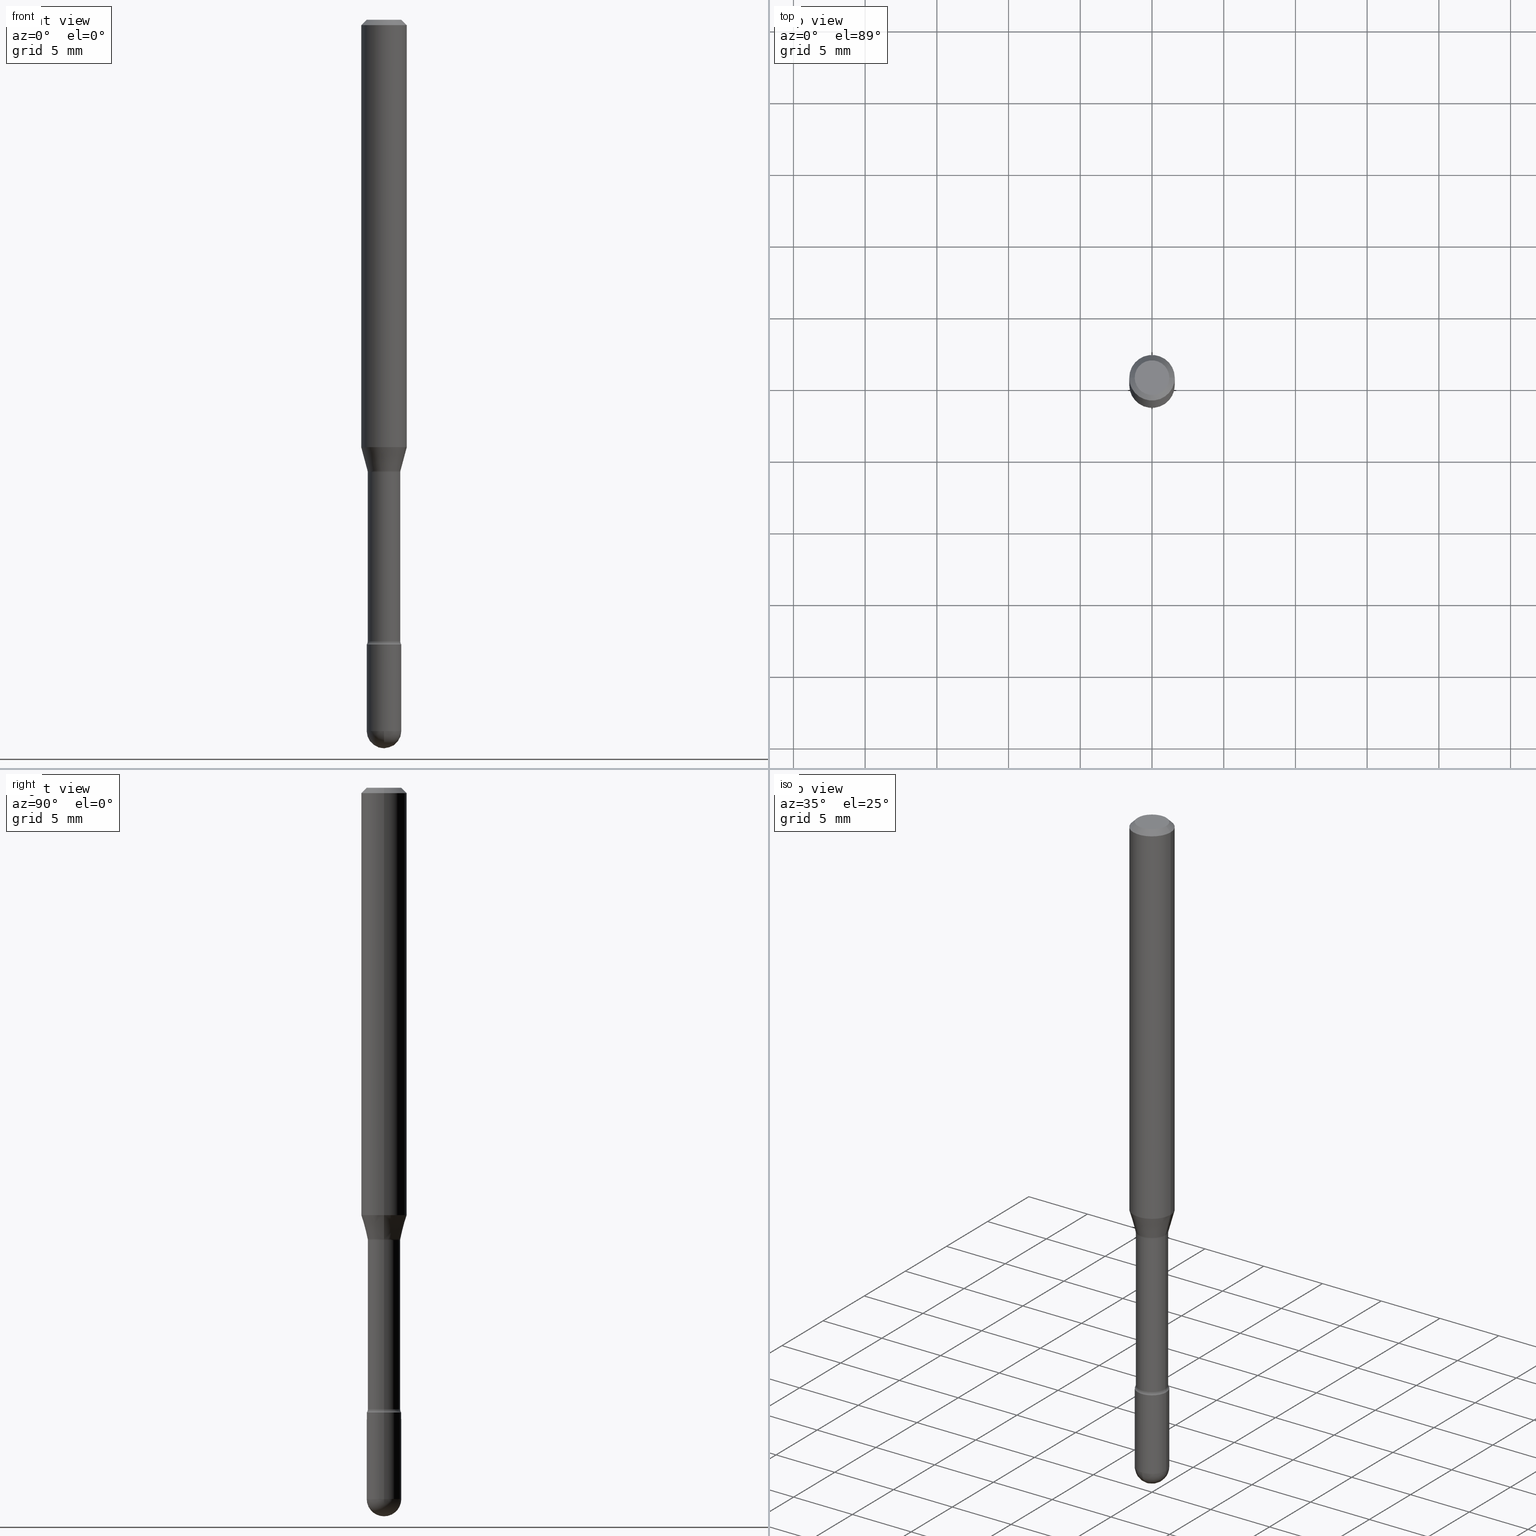
[diagram: canonical four-view strip — front | top / right | iso, engineering-drawing reading convention]
A machine part, canonical four-view strip (front | top / right | iso — engineering-drawing reading convention). The complete STEP part file that produces these views, byte-faithful:
ISO-10303-21;
HEADER;
FILE_DESCRIPTION (( 'STEP AP203' ),
    '1' );
FILE_NAME ('09829.STEP',
    '2024-04-10T01:58:22',
    ( '' ),
    ( '' ),
    'SwSTEP 2.0',
    'SolidWorks 2023',
    '' );
FILE_SCHEMA (( 'CONFIG_CONTROL_DESIGN' ));
ENDSEC;

DATA;
#1 = FACE_OUTER_BOUND ( 'NONE', #123, .T. ) ;
#2 = APPROVAL_PERSON_ORGANIZATION ( #74, #91, #261 ) ;
#3 = ADVANCED_FACE ( 'NONE', ( #472 ), #211, .T. ) ;
#4 = DIRECTION ( 'NONE',  ( 1.000000000000000000, -6.982962677686265133E-15, 4.883557194083112340E-29 ) ) ;
#5 = EDGE_CURVE ( 'NONE', #31, #465, #383, .T. ) ;
#6 = DIRECTION ( 'NONE',  ( -2.445468806185136597E-29, 3.491481338843145583E-15, 1.000000000000000000 ) ) ;
#7 = ORIENTED_EDGE ( 'NONE', *, *, #349, .T. ) ;
#8 = CARTESIAN_POINT ( 'NONE',  ( 4.193979002607509757E-29, -5.987890496115994688E-15, -1.715000000000000080 ) ) ;
#9 = CARTESIAN_POINT ( 'NONE',  ( 0.04516111260566398056, -4.638135229560025588E-15, -1.238092501787273036 ) ) ;
#10 = DIRECTION ( 'NONE',  ( 1.000000000000000000, -6.982962677686271444E-15, 0.000000000000000000 ) ) ;
#11 = ADVANCED_FACE ( 'NONE', ( #563 ), #265, .T. ) ;
#12 = DIRECTION ( 'NONE',  ( -2.445468806185136597E-29, 3.491481338843145583E-15, 1.000000000000000000 ) ) ;
#13 = EDGE_LOOP ( 'NONE', ( #508, #273, #191, #350 ) ) ;
#14 = EDGE_LOOP ( 'NONE', ( #63, #535 ) ) ;
#15 = DIRECTION ( 'NONE',  ( -2.445468806185136877E-29, 3.491481338843145188E-15, 1.000000000000000000 ) ) ;
#16 = CARTESIAN_POINT ( 'NONE',  ( -0.04516111260566398056, -4.001887860743903351E-15, -1.238092501787273036 ) ) ;
#17 = CARTESIAN_POINT ( 'NONE',  ( 4.774777844076478914E-29, -6.817117314091241226E-15, -1.952499999999999902 ) ) ;
#18 = VECTOR ( 'NONE', #86, 39.37007874015748143 ) ;
#19 = AXIS2_PLACEMENT_3D ( 'NONE', #54, #494, #412 ) ;
#20 = CARTESIAN_POINT ( 'NONE',  ( 3.027716592292491270E-29, -4.322776865751887960E-15, -1.238092501787273036 ) ) ;
#21 = VERTEX_POINT ( 'NONE', #165 ) ;
#22 = DIRECTION ( 'NONE',  ( 7.105427357601001859E-15, 1.000000000000000000, -3.491481338843145583E-15 ) ) ;
#23 = EDGE_LOOP ( 'NONE', ( #205, #163, #338, #497 ) ) ;
#24 = EDGE_LOOP ( 'NONE', ( #110, #119, #198, #459 ) ) ;
#25 = VERTEX_POINT ( 'NONE', #342 ) ;
#26 = ADVANCED_FACE ( 'NONE', ( #419 ), #72, .F. ) ;
#27 = DIRECTION ( 'NONE',  ( 1.000000000000000000, -6.982962677686260400E-15, 0.000000000000000000 ) ) ;
#28 = EDGE_CURVE ( 'NONE', #348, #411, #154, .T. ) ;
#29 = CALENDAR_DATE ( 2024, 9, 4 ) ;
#30 = DIRECTION ( 'NONE',  ( -2.445468806185136597E-29, 3.491481338843145583E-15, 1.000000000000000000 ) ) ;
#31 = VERTEX_POINT ( 'NONE', #128 ) ;
#32 = DATE_TIME_ROLE ( 'creation_date' ) ;
#33 = ORIENTED_EDGE ( 'NONE', *, *, #481, .F. ) ;
#34 = DATE_AND_TIME ( #382, #426 ) ;
#35 = FACE_OUTER_BOUND ( 'NONE', #192, .T. ) ;
#36 = VECTOR ( 'NONE', #460, 39.37007874015748143 ) ;
#37 = CARTESIAN_POINT ( 'NONE',  ( 3.037210600811164574E-29, -4.336331793743577757E-15, -1.241974787463810959 ) ) ;
#38 = DIRECTION ( 'NONE',  ( 2.445468806185136597E-29, -3.491481338843145583E-15, -1.000000000000000000 ) ) ;
#39 = CARTESIAN_POINT ( 'NONE',  ( 2.869471262750380968E-29, -4.096844474523694177E-15, -1.173382893084895295 ) ) ;
#40 = DIRECTION ( 'NONE',  ( -2.445468806185136597E-29, 3.491481338843145583E-15, 1.000000000000000000 ) ) ;
#41 = ADVANCED_FACE ( 'NONE', ( #352 ), #257, .T. ) ;
#42 = VECTOR ( 'NONE', #446, 39.37007874015748143 ) ;
#43 = CIRCLE ( 'NONE', #354, 0.04749999999999999362 ) ;
#44 = LINE ( 'NONE', #200, #79 ) ;
#45 = DIRECTION ( 'NONE',  ( -2.445468806185136597E-29, 3.491481338843145583E-15, 1.000000000000000000 ) ) ;
#46 = FACE_OUTER_BOUND ( 'NONE', #334, .T. ) ;
#47 = CARTESIAN_POINT ( 'NONE',  ( -1.169113584055446105E-44, 1.669184350826100908E-30, 4.780733988912460139E-16 ) ) ;
#48 = CARTESIAN_POINT ( 'NONE',  ( 4.774777844076478914E-29, -6.817117314091241226E-15, -1.952499999999999902 ) ) ;
#49 = VERTEX_POINT ( 'NONE', #75 ) ;
#50 = LOCAL_TIME ( 21, 58, 22.00000000000000000, #70 ) ;
#51 = VECTOR ( 'NONE', #315, 39.37007874015748143 ) ;
#52 = FACE_OUTER_BOUND ( 'NONE', #408, .T. ) ;
#53 = DIRECTION ( 'NONE',  ( 1.000000000000000000, -6.982962677686266711E-15, 4.852736867747366207E-29 ) ) ;
#54 = CARTESIAN_POINT ( 'NONE',  ( 0.05965000000000000163, -4.752865517467563497E-15, -1.241974787463810959 ) ) ;
#55 = CARTESIAN_POINT ( 'NONE',  ( 4.193979002607509757E-29, -5.987890496115994688E-15, -1.715000000000000080 ) ) ;
#56 = DIRECTION ( 'NONE',  ( 1.000000000000000000, -6.982962677686258033E-15, 0.000000000000000000 ) ) ;
#57 = ORIENTED_EDGE ( 'NONE', *, *, #474, .F. ) ;
#58 = CIRCLE ( 'NONE', #528, 0.04750000000000000749 ) ;
#59 = ADVANCED_FACE ( 'NONE', ( #35 ), #544, .T. ) ;
#60 = EDGE_LOOP ( 'NONE', ( #423, #531, #402, #346, #239 ) ) ;
#61 = CIRCLE ( 'NONE', #434, 0.04749999999999998668 ) ;
#62 = CIRCLE ( 'NONE', #457, 0.04750000000000000749 ) ;
#63 = ORIENTED_EDGE ( 'NONE', *, *, #146, .T. ) ;
#64 = DIRECTION ( 'NONE',  ( 1.000000000000000000, -6.982962677686266711E-15, 0.000000000000000000 ) ) ;
#65 = CARTESIAN_POINT ( 'NONE',  ( -0.06250000000000000000, 4.440892098500642925E-16, 4.780733988912429571E-16 ) ) ;
#66 = ORIENTED_EDGE ( 'NONE', *, *, #250, .T. ) ;
#67 = COORDINATED_UNIVERSAL_TIME_OFFSET ( 5, 0, .BEHIND. ) ;
#68 = VERTEX_POINT ( 'NONE', #230 ) ;
#69 = ADVANCED_FACE ( 'NONE', ( #1 ), #375, .F. ) ;
#70 = COORDINATED_UNIVERSAL_TIME_OFFSET ( 5, 0, .BEHIND. ) ;
#71 = ORIENTED_EDGE ( 'NONE', *, *, #259, .F. ) ;
#72 = TOROIDAL_SURFACE ( 'NONE', #124, 0.05965000000000000163, 0.01500000000000003240 ) ;
#73 = APPROVAL_STATUS ( 'not_yet_approved' ) ;
#74 = PERSON_AND_ORGANIZATION ( #473, #129 ) ;
#75 = CARTESIAN_POINT ( 'NONE',  ( 3.316907271901453357E-16, 0.04749999999999317268, -1.952500000000000346 ) ) ;
#76 = EDGE_CURVE ( 'NONE', #68, #366, #480, .T. ) ;
#77 = PRODUCT ( '09829', '09829', '', ( #167 ) ) ;
#78 = AXIS2_PLACEMENT_3D ( 'NONE', #20, #288, #56 ) ;
#79 = VECTOR ( 'NONE', #15, 39.37007874015748143 ) ;
#80 = CARTESIAN_POINT ( 'NONE',  ( 3.037210600811164574E-29, -4.336331793743577757E-15, -1.241974787463810959 ) ) ;
#81 = EDGE_CURVE ( 'NONE', #101, #455, #112, .T. ) ;
#82 = CIRCLE ( 'NONE', #565, 0.04465000000000005076 ) ;
#83 = EDGE_LOOP ( 'NONE', ( #213, #221, #529, #538 ) ) ;
#84 = AXIS2_PLACEMENT_3D ( 'NONE', #184, #6, #95 ) ;
#85 = CARTESIAN_POINT ( 'NONE',  ( -0.04464999999999999525, -4.829497496136509285E-15, -1.241974787463810959 ) ) ;
#86 = DIRECTION ( 'NONE',  ( 0.2588190451025205729, 1.565188264969628081E-15, 0.9659258262890684232 ) ) ;
#87 = DIRECTION ( 'NONE',  ( 1.000000000000000000, -6.982962677686262766E-15, 0.000000000000000000 ) ) ;
#88 = EDGE_CURVE ( 'NONE', #245, #554, #357, .T. ) ;
#89 = DIRECTION ( 'NONE',  ( 1.000000000000000000, -6.982962677686265922E-15, 4.876176775795935793E-29 ) ) ;
#90 = ORIENTED_EDGE ( 'NONE', *, *, #349, .F. ) ;
#91 = APPROVAL ( #73, 'UNSPECIFIED' ) ;
#92 = EDGE_LOOP ( 'NONE', ( #483, #547, #197, #249, #289 ) ) ;
#93 = LINE ( 'NONE', #453, #42 ) ;
#94 = MANIFOLD_SOLID_BREP ( 'Body-Move/Copy2[2]', #102 ) ;
#95 = DIRECTION ( 'NONE',  ( 1.000000000000000000, -6.982962677686258033E-15, 0.000000000000000000 ) ) ;
#96 = ORIENTED_EDGE ( 'NONE', *, *, #76, .T. ) ;
#97 = DIRECTION ( 'NONE',  ( -2.445468806185136597E-29, 3.491481338843145583E-15, 1.000000000000000000 ) ) ;
#98 = CARTESIAN_POINT ( 'NONE',  ( -0.04516111260566398056, -3.827321562708767456E-15, -1.238092501787273036 ) ) ;
#99 = DIRECTION ( 'NONE',  ( -2.445468806185136597E-29, 3.491481338843145583E-15, 1.000000000000000000 ) ) ;
#100 = LOCAL_TIME ( 21, 58, 22.00000000000000000, #67 ) ;
#101 = VERTEX_POINT ( 'NONE', #326 ) ;
#102 = CLOSED_SHELL ( 'NONE', ( #26, #281, #398, #11, #139, #59, #314, #157, #41, #523, #451, #208, #3, #69 ) ) ;
#103 = CARTESIAN_POINT ( 'NONE',  ( 2.023552857353652888E-45, -2.889097183224559242E-31, -8.274703207154537794E-17 ) ) ;
#104 = CARTESIAN_POINT ( 'NONE',  ( 3.037210600811164574E-29, -4.336331793743577757E-15, -1.241974787463810959 ) ) ;
#105 = DIRECTION ( 'NONE',  ( 1.000000000000000000, -6.982962677686260400E-15, 0.000000000000000000 ) ) ;
#106 = DIRECTION ( 'NONE',  ( 1.000000000000000000, -6.982962677686261977E-15, 0.000000000000000000 ) ) ;
#107 = EDGE_CURVE ( 'NONE', #542, #385, #437, .T. ) ;
#108 = EDGE_CURVE ( 'NONE', #204, #313, #469, .T. ) ;
#109 = CARTESIAN_POINT ( 'NONE',  ( 4.774777844076478914E-29, -6.817117314091241226E-15, -1.952499999999999902 ) ) ;
#110 = ORIENTED_EDGE ( 'NONE', *, *, #231, .F. ) ;
#111 = AXIS2_PLACEMENT_3D ( 'NONE', #55, #492, #365 ) ;
#112 = CIRCLE ( 'NONE', #393, 0.04749999999999999362 ) ;
#113 = AXIS2_PLACEMENT_3D ( 'NONE', #545, #489, #135 ) ;
#114 = ORIENTED_EDGE ( 'NONE', *, *, #526, .T. ) ;
#115 = CARTESIAN_POINT ( 'NONE',  ( 3.316907271900976096E-16, 0.04749999999999999362, 3.181781981480094004E-17 ) ) ;
#116 = APPROVAL ( #470, 'UNSPECIFIED' ) ;
#117 = PERSON_AND_ORGANIZATION ( #473, #129 ) ;
#118 = DIRECTION ( 'NONE',  ( -1.000000000000000000, 6.982962677686265922E-15, -4.876176775795935793E-29 ) ) ;
#119 = ORIENTED_EDGE ( 'NONE', *, *, #108, .T. ) ;
#120 = CARTESIAN_POINT ( 'NONE',  ( 3.668203209277725232E-31, -5.237222008264747365E-17, -0.01500000000000008271 ) ) ;
#121 = DATE_AND_TIME ( #515, #100 ) ;
#122 = FACE_OUTER_BOUND ( 'NONE', #92, .T. ) ;
#123 = EDGE_LOOP ( 'NONE', ( #425, #57, #445, #397 ) ) ;
#124 = AXIS2_PLACEMENT_3D ( 'NONE', #268, #40, #4 ) ;
#125 = DIRECTION ( 'NONE',  ( -2.445468806185136597E-29, 3.491481338843145583E-15, 1.000000000000000000 ) ) ;
#126 = LINE ( 'NONE', #65, #262 ) ;
#127 = ORIENTED_EDGE ( 'NONE', *, *, #250, .F. ) ;
#128 = CARTESIAN_POINT ( 'NONE',  ( -0.04750000000000000749, -6.064996105617570464E-15, -1.952499999999999902 ) ) ;
#129 = ORGANIZATION ( 'UNSPECIFIED', 'UNSPECIFIED', '' ) ;
#130 = DIRECTION ( 'NONE',  ( -1.000000000000000000, 6.982962677686266711E-15, 0.000000000000000000 ) ) ;
#131 = EDGE_CURVE ( 'NONE', #385, #550, #93, .T. ) ;
#132 = APPLICATION_PROTOCOL_DEFINITION ( 'international standard', 'config_control_design', 1994, #269 ) ;
#133 = CARTESIAN_POINT ( 'NONE',  ( 0.04750000000000000749, -3.316907271900977082E-16, 2.316183968503069432E-30 ) ) ;
#134 = DIRECTION ( 'NONE',  ( -2.445468806185136597E-29, 3.491481338843145583E-15, 1.000000000000000000 ) ) ;
#135 = DIRECTION ( 'NONE',  ( 6.982962677686265922E-15, 1.000000000000000000, -5.751258934030028949E-15 ) ) ;
#136 = TOROIDAL_SURFACE ( 'NONE', #227, 0.05965000000000005714, 0.01500000000000000291 ) ;
#137 = DIRECTION ( 'NONE',  ( -6.982962677686266711E-15, -1.000000000000000000, 3.491481338843145583E-15 ) ) ;
#138 = CARTESIAN_POINT ( 'NONE',  ( 0.06250000000000000000, -4.888073874380391431E-16, -0.01500000000000008271 ) ) ;
#139 = ADVANCED_FACE ( 'NONE', ( #487 ), #241, .T. ) ;
#140 = VERTEX_POINT ( 'NONE', #85 ) ;
#141 = DIRECTION ( 'NONE',  ( -2.445468806185136597E-29, 3.491481338843145583E-15, 1.000000000000000000 ) ) ;
#142 = CARTESIAN_POINT ( 'NONE',  ( 0.000000000000000000, 0.000000000000000000, 0.000000000000000000 ) ) ;
#143 = EDGE_LOOP ( 'NONE', ( #428, #421, #325, #496 ) ) ;
#144 = DIRECTION ( 'NONE',  ( 1.000000000000000000, -6.982962677686265922E-15, 4.883557194083112340E-29 ) ) ;
#145 = CARTESIAN_POINT ( 'NONE',  ( 0.04464999999999999525, -4.648121077302269339E-15, -1.241974787463810959 ) ) ;
#146 = EDGE_CURVE ( 'NONE', #411, #465, #368, .T. ) ;
#147 = AXIS2_PLACEMENT_3D ( 'NONE', #151, #543, #499 ) ;
#148 = AXIS2_PLACEMENT_3D ( 'NONE', #103, #399, #274 ) ;
#149 = EDGE_CURVE ( 'NONE', #313, #68, #524, .T. ) ;
#150 = CARTESIAN_POINT ( 'NONE',  ( 4.774777844076478914E-29, -6.817117314091241226E-15, -1.952499999999999902 ) ) ;
#151 = CARTESIAN_POINT ( 'NONE',  ( 3.027716592292491270E-29, -4.322776865751887960E-15, -1.238092501787273036 ) ) ;
#152 = DIRECTION ( 'NONE',  ( -2.445468806185136597E-29, 3.491481338843145583E-15, 1.000000000000000000 ) ) ;
#153 = ORIENTED_EDGE ( 'NONE', *, *, #243, .F. ) ;
#154 = LINE ( 'NONE', #133, #51 ) ;
#155 = DIRECTION ( 'NONE',  ( 1.000000000000000000, -6.982962677686261977E-15, 0.000000000000000000 ) ) ;
#156 = FACE_OUTER_BOUND ( 'NONE', #407, .T. ) ;
#157 = ADVANCED_FACE ( 'NONE', ( #46 ), #327, .T. ) ;
#158 = AXIS2_PLACEMENT_3D ( 'NONE', #115, #509, #118 ) ;
#159 = DATE_AND_TIME ( #301, #170 ) ;
#160 = CIRCLE ( 'NONE', #435, 0.04750000000000000749 ) ;
#161 = ORIENTED_EDGE ( 'NONE', *, *, #229, .T. ) ;
#162 = DIRECTION ( 'NONE',  ( -1.000000000000000000, 7.105427357600989237E-15, 0.000000000000000000 ) ) ;
#163 = ORIENTED_EDGE ( 'NONE', *, *, #413, .T. ) ;
#164 = APPROVAL_DATE_TIME ( #341, #116 ) ;
#165 = CARTESIAN_POINT ( 'NONE',  ( -0.06250000000000000000, -3.652755264673631561E-15, -1.173382893084895295 ) ) ;
#166 = ORIENTED_EDGE ( 'NONE', *, *, #229, .F. ) ;
#167 = MECHANICAL_CONTEXT ( 'NONE', #471, 'mechanical' ) ;
#168 = EDGE_CURVE ( 'NONE', #466, #25, #82, .T. ) ;
#169 = PERSON_AND_ORGANIZATION_ROLE ( 'creator' ) ;
#170 = LOCAL_TIME ( 21, 58, 22.00000000000000000, #228 ) ;
#171 = DESIGN_CONTEXT ( 'detailed design', #269, 'design' ) ;
#172 = CLOSED_SHELL ( 'NONE', ( #295, #316, #371, #351, #430 ) ) ;
#173 = CIRCLE ( 'NONE', #405, 0.06250000000000000000 ) ;
#174 = APPROVAL_ROLE ( '' ) ;
#175 = CC_DESIGN_PERSON_AND_ORGANIZATION_ASSIGNMENT ( #376, #169, ( #391 ) ) ;
#176 = DIRECTION ( 'NONE',  ( 1.000000000000000000, -6.982962677686265133E-15, 4.883557194083112340E-29 ) ) ;
#177 = PERSON_AND_ORGANIZATION_ROLE ( 'design_owner' ) ;
#178 = VECTOR ( 'NONE', #251, 39.37007874015748143 ) ;
#179 = FACE_OUTER_BOUND ( 'NONE', #83, .T. ) ;
#180 = DIRECTION ( 'NONE',  ( -1.000000000000000000, 7.105427357601001070E-15, -4.926315508542082329E-29 ) ) ;
#181 = FACE_OUTER_BOUND ( 'NONE', #561, .T. ) ;
#182 = CIRCLE ( 'NONE', #504, 0.01500000000000002720 ) ;
#183 = CIRCLE ( 'NONE', #505, 0.04464999999999999525 ) ;
#184 = CARTESIAN_POINT ( 'NONE',  ( 3.027716592292491270E-29, -4.322776865751887960E-15, -1.238092501787273036 ) ) ;
#185 = CIRCLE ( 'NONE', #266, 0.04750000000000000749 ) ;
#186 = ORIENTED_EDGE ( 'NONE', *, *, #306, .T. ) ;
#187 = CARTESIAN_POINT ( 'NONE',  ( 0.06250000000000000000, -4.364351673553899931E-16, 4.780733988912490708E-16 ) ) ;
#188 = DIRECTION ( 'NONE',  ( -0.2588190451025205729, 5.211531920934545520E-15, 0.9659258262890684232 ) ) ;
#189 = DIRECTION ( 'NONE',  ( 1.000000000000000000, -6.982962677686260400E-15, 0.000000000000000000 ) ) ;
#190 = ORIENTED_EDGE ( 'NONE', *, *, #168, .T. ) ;
#191 = ORIENTED_EDGE ( 'NONE', *, *, #522, .F. ) ;
#192 = EDGE_LOOP ( 'NONE', ( #448, #360, #305, #490 ) ) ;
#193 = CARTESIAN_POINT ( 'NONE',  ( -1.169113584055446105E-44, 1.669184350826100908E-30, 4.780733988912460139E-16 ) ) ;
#194 = DIRECTION ( 'NONE',  ( -2.445468806185136597E-29, 3.491481338843145583E-15, 1.000000000000000000 ) ) ;
#195 = EDGE_CURVE ( 'NONE', #245, #49, #61, .T. ) ;
#196 = SPHERICAL_SURFACE ( 'NONE', #318, 0.04749999999999998668 ) ;
#197 = ORIENTED_EDGE ( 'NONE', *, *, #146, .F. ) ;
#198 = ORIENTED_EDGE ( 'NONE', *, *, #149, .T. ) ;
#199 = CARTESIAN_POINT ( 'NONE',  ( 0.05965000000000005714, -6.373711585287197134E-15, -1.706203551853162859 ) ) ;
#200 = CARTESIAN_POINT ( 'NONE',  ( -0.04465000000000002994, 3.172573315168866221E-16, 4.780733988912438446E-16 ) ) ;
#201 = EDGE_LOOP ( 'NONE', ( #161, #7, #539, #127 ) ) ;
#202 = AXIS2_PLACEMENT_3D ( 'NONE', #120, #152, #458 ) ;
#203 =( NAMED_UNIT ( * ) PLANE_ANGLE_UNIT ( ) SI_UNIT ( $, .RADIAN. ) );
#204 = VERTEX_POINT ( 'NONE', #98 ) ;
#205 = ORIENTED_EDGE ( 'NONE', *, *, #107, .F. ) ;
#206 = EDGE_CURVE ( 'NONE', #401, #140, #183, .T. ) ;
#207 = ORIENTED_EDGE ( 'NONE', *, *, #243, .T. ) ;
#208 = ADVANCED_FACE ( 'NONE', ( #181 ), #403, .F. ) ;
#209 = DIRECTION ( 'NONE',  ( -2.445468806185136597E-29, 3.491481338843145583E-15, 1.000000000000000000 ) ) ;
#210 = ORIENTED_EDGE ( 'NONE', *, *, #390, .F. ) ;
#211 = CYLINDRICAL_SURFACE ( 'NONE', #427, 0.04465000000000002994 ) ;
#212 = CARTESIAN_POINT ( 'NONE',  ( -0.04749999999999999362, -6.064996105617570464E-15, -1.715000000000000080 ) ) ;
#213 = ORIENTED_EDGE ( 'NONE', *, *, #195, .F. ) ;
#214 = DATE_TIME_ROLE ( 'classification_date' ) ;
#215 = EDGE_LOOP ( 'NONE', ( #486, #362, #33, #441 ) ) ;
#216 = LINE ( 'NONE', #303, #36 ) ;
#217 = CARTESIAN_POINT ( 'NONE',  ( 0.000000000000000000, 0.000000000000000000, 0.000000000000000000 ) ) ;
#218 = EDGE_CURVE ( 'NONE', #313, #401, #416, .T. ) ;
#219 = DIMENSIONAL_EXPONENTS ( 1.000000000000000000, 0.000000000000000000, 0.000000000000000000, 0.000000000000000000, 0.000000000000000000, 0.000000000000000000, 0.000000000000000000 ) ;
#220 = CC_DESIGN_PERSON_AND_ORGANIZATION_ASSIGNMENT ( #518, #177, ( #77 ) ) ;
#221 = ORIENTED_EDGE ( 'NONE', *, *, #88, .T. ) ;
#222 = AXIS2_PLACEMENT_3D ( 'NONE', #279, #275, #89 ) ;
#223 = PRODUCT_DEFINITION_FORMATION_WITH_SPECIFIED_SOURCE ( 'ANY', '', #77, .NOT_KNOWN. ) ;
#224 = CARTESIAN_POINT ( 'NONE',  ( 0.000000000000000000, 0.000000000000000000, 0.000000000000000000 ) ) ;
#225 = CARTESIAN_POINT ( 'NONE',  ( 3.027716592292491270E-29, -4.322776865751887960E-15, -1.238092501787273036 ) ) ;
#226 = AXIS2_PLACEMENT_3D ( 'NONE', #521, #38, #130 ) ;
#227 = AXIS2_PLACEMENT_3D ( 'NONE', #414, #541, #406 ) ;
#228 = COORDINATED_UNIVERSAL_TIME_OFFSET ( 5, 0, .BEHIND. ) ;
#229 = EDGE_CURVE ( 'NONE', #25, #466, #247, .T. ) ;
#230 = CARTESIAN_POINT ( 'NONE',  ( 0.06250000000000000000, -4.533279641879085846E-15, -1.173382893084895295 ) ) ;
#231 = EDGE_CURVE ( 'NONE', #204, #21, #242, .T. ) ;
#232 = CYLINDRICAL_SURFACE ( 'NONE', #488, 0.04465000000000002994 ) ;
#233 = VECTOR ( 'NONE', #370, 39.37007874015748143 ) ;
#234 = DIRECTION ( 'NONE',  ( -1.000000000000000000, 6.982962677686265922E-15, -4.883557194083112340E-29 ) ) ;
#235 = ORIENTED_EDGE ( 'NONE', *, *, #81, .F. ) ;
#236 = DIRECTION ( 'NONE',  ( 1.000000000000000000, -6.982962677686260400E-15, 0.000000000000000000 ) ) ;
#237 = DIRECTION ( 'NONE',  ( 1.000000000000000000, -6.982962677686266711E-15, 4.852736867747366207E-29 ) ) ;
#238 = CONICAL_SURFACE ( 'NONE', #84, 0.04516111260566398056, 0.2617993877991492413 ) ;
#239 = ORIENTED_EDGE ( 'NONE', *, *, #514, .F. ) ;
#240 = AXIS2_PLACEMENT_3D ( 'NONE', #324, #141, #367 ) ;
#241 = CYLINDRICAL_SURFACE ( 'NONE', #519, 0.06250000000000000000 ) ;
#242 = LINE ( 'NONE', #16, #384 ) ;
#243 = EDGE_CURVE ( 'NONE', #25, #101, #478, .T. ) ;
#244 = PLANE ( 'NONE',  #433 ) ;
#245 = VERTEX_POINT ( 'NONE', #321 ) ;
#246 = AXIS2_PLACEMENT_3D ( 'NONE', #193, #364, #237 ) ;
#247 = CIRCLE ( 'NONE', #566, 0.04465000000000005076 ) ;
#248 = CARTESIAN_POINT ( 'NONE',  ( 3.316907271901395178E-16, 0.04749999999999401229, -1.715000000000000524 ) ) ;
#249 = ORIENTED_EDGE ( 'NONE', *, *, #28, .F. ) ;
#250 = EDGE_CURVE ( 'NONE', #25, #401, #216, .T. ) ;
#251 = DIRECTION ( 'NONE',  ( -2.445468806185136877E-29, 3.491481338843145188E-15, 1.000000000000000000 ) ) ;
#252 = PERSON_AND_ORGANIZATION ( #473, #129 ) ;
#253 = EDGE_LOOP ( 'NONE', ( #294, #513, #511, #153 ) ) ;
#254 = APPLICATION_PROTOCOL_DEFINITION ( 'international standard', 'config_control_design', 1994, #471 ) ;
#255 = AXIS2_PLACEMENT_3D ( 'NONE', #217, #381, #559 ) ;
#256 = APPROVAL_ROLE ( '' ) ;
#257 = CONICAL_SURFACE ( 'NONE', #226, 0.06250000000000000000, 0.7853981633974483900 ) ;
#258 = DIRECTION ( 'NONE',  ( -1.000000000000000000, 6.982962677686266711E-15, 0.000000000000000000 ) ) ;
#259 = EDGE_CURVE ( 'NONE', #550, #366, #287, .T. ) ;
#260 = SHAPE_DEFINITION_REPRESENTATION ( #395, #380 ) ;
#261 = APPROVAL_ROLE ( '' ) ;
#262 = VECTOR ( 'NONE', #378, 39.37007874015748143 ) ;
#263 = PERSON_AND_ORGANIZATION_ROLE ( 'design_supplier' ) ;
#264 = EDGE_CURVE ( 'NONE', #68, #21, #456, .T. ) ;
#265 = CONICAL_SURFACE ( 'NONE', #311, 0.06250000000000000000, 0.7853981633974483900 ) ;
#266 = AXIS2_PLACEMENT_3D ( 'NONE', #48, #12, #189 ) ;
#267 = DIRECTION ( 'NONE',  ( -2.445468806185136597E-29, 3.491481338843145583E-15, 1.000000000000000000 ) ) ;
#268 = CARTESIAN_POINT ( 'NONE',  ( 3.037210600811164574E-29, -4.336331793743577757E-15, -1.241974787463810959 ) ) ;
#269 = APPLICATION_CONTEXT ( 'configuration controlled 3d designs of mechanical parts and assemblies' ) ;
#270 = AXIS2_PLACEMENT_3D ( 'NONE', #439, #355, #155 ) ;
#271 = AXIS2_PLACEMENT_3D ( 'NONE', #142, #99, #282 ) ;
#272 = CC_DESIGN_DATE_AND_TIME_ASSIGNMENT ( #293, #214, ( #392 ) ) ;
#273 = ORIENTED_EDGE ( 'NONE', *, *, #195, .T. ) ;
#274 = DIRECTION ( 'NONE',  ( 1.000000000000000000, -6.982962677686267499E-15, 4.884662768193073002E-29 ) ) ;
#275 = DIRECTION ( 'NONE',  ( -2.438088387897960049E-29, 3.491481338843145188E-15, 1.000000000000000000 ) ) ;
#276 = DIRECTION ( 'NONE',  ( 1.000000000000000000, -6.982962677686266711E-15, 4.876176775795934672E-29 ) ) ;
#277 = ORIENTED_EDGE ( 'NONE', *, *, #323, .T. ) ;
#278 = DIRECTION ( 'NONE',  ( -2.445468806185136597E-29, 3.491481338843145583E-15, 1.000000000000000000 ) ) ;
#279 = CARTESIAN_POINT ( 'NONE',  ( 4.193979002607509757E-29, -5.987890496115994688E-15, -1.715000000000000080 ) ) ;
#280 = DIRECTION ( 'NONE',  ( 6.982962677686265133E-15, 1.000000000000000000, 0.000000000000000000 ) ) ;
#281 = ADVANCED_FACE ( 'NONE', ( #308 ), #232, .T. ) ;
#282 = DIRECTION ( 'NONE',  ( 1.000000000000000000, -6.982962677686266711E-15, 4.876176775795934672E-29 ) ) ;
#283 = DIRECTION ( 'NONE',  ( -2.445468806185136597E-29, 3.491481338843145583E-15, 1.000000000000000000 ) ) ;
#284 = MANIFOLD_SOLID_BREP ( 'Body-Move/Copy2[1]', #172 ) ;
#285 = DIRECTION ( 'NONE',  ( -2.445468806185136597E-29, 3.491481338843145583E-15, 1.000000000000000000 ) ) ;
#286 = DIRECTION ( 'NONE',  ( -2.445468806185136597E-29, 3.491481338843145583E-15, 1.000000000000000000 ) ) ;
#287 = CIRCLE ( 'NONE', #533, 0.06250000000000000000 ) ;
#288 = DIRECTION ( 'NONE',  ( -2.445468806185136597E-29, 3.491481338843145583E-15, 1.000000000000000000 ) ) ;
#289 = ORIENTED_EDGE ( 'NONE', *, *, #522, .T. ) ;
#290 = CC_DESIGN_PERSON_AND_ORGANIZATION_ASSIGNMENT ( #475, #263, ( #223 ) ) ;
#291 = AXIS2_PLACEMENT_3D ( 'NONE', #39, #482, #87 ) ;
#292 = CARTESIAN_POINT ( 'NONE',  ( 0.04749999999999999362, -4.035134999187581581E-16, -8.274703207154280181E-17 ) ) ;
#293 = DATE_AND_TIME ( #344, #50 ) ;
#294 = ORIENTED_EDGE ( 'NONE', *, *, #168, .F. ) ;
#295 = ADVANCED_FACE ( 'NONE', ( #122 ), #432, .T. ) ;
#296 = ORIENTED_EDGE ( 'NONE', *, *, #107, .T. ) ;
#297 = CC_DESIGN_PERSON_AND_ORGANIZATION_ASSIGNMENT ( #252, #379, ( #392 ) ) ;
#298 =( CONVERSION_BASED_UNIT ( 'INCH', #454 ) LENGTH_UNIT ( ) NAMED_UNIT ( #219 ) );
#299 = CC_DESIGN_SECURITY_CLASSIFICATION ( #392, ( #223 ) ) ;
#300 = AXIS2_PLACEMENT_3D ( 'NONE', #363, #180, #491 ) ;
#301 = CALENDAR_DATE ( 2024, 9, 4 ) ;
#302 = CIRCLE ( 'NONE', #78, 0.04516111260566398056 ) ;
#303 = CARTESIAN_POINT ( 'NONE',  ( 0.04465000000000002994, -3.117892835586902995E-16, 4.780733988912482819E-16 ) ) ;
#304 = COORDINATED_UNIVERSAL_TIME_OFFSET ( 5, 0, .BEHIND. ) ;
#305 = ORIENTED_EDGE ( 'NONE', *, *, #264, .F. ) ;
#306 = EDGE_CURVE ( 'NONE', #140, #401, #549, .T. ) ;
#307 = DIRECTION ( 'NONE',  ( -2.445468806185136597E-29, 3.491481338843145583E-15, 1.000000000000000000 ) ) ;
#308 = FACE_OUTER_BOUND ( 'NONE', #201, .T. ) ;
#309 = APPROVAL_PERSON_ORGANIZATION ( #436, #388, #256 ) ;
#310 = CC_DESIGN_APPROVAL ( #91, ( #392 ) ) ;
#311 = AXIS2_PLACEMENT_3D ( 'NONE', #477, #556, #258 ) ;
#312 = AXIS2_PLACEMENT_3D ( 'NONE', #339, #209, #548 ) ;
#313 = VERTEX_POINT ( 'NONE', #9 ) ;
#314 = ADVANCED_FACE ( 'NONE', ( #396 ), #238, .T. ) ;
#315 = DIRECTION ( 'NONE',  ( -2.445468806185136877E-29, 3.491481338843145188E-15, 1.000000000000000000 ) ) ;
#316 = ADVANCED_FACE ( 'NONE', ( #179 ), #502, .T. ) ;
#317 = CC_DESIGN_APPROVAL ( #388, ( #391 ) ) ;
#318 = AXIS2_PLACEMENT_3D ( 'NONE', #17, #234, #527 ) ;
#319 = DIRECTION ( 'NONE',  ( -2.445468806185136597E-29, 3.491481338843145583E-15, 1.000000000000000000 ) ) ;
#320 = DIRECTION ( 'NONE',  ( -2.445468806185136877E-29, 3.491481338843145188E-15, 1.000000000000000000 ) ) ;
#321 = CARTESIAN_POINT ( 'NONE',  ( 4.892968632307074311E-29, -6.980054141538316174E-15, -2.000000000000000000 ) ) ;
#322 = FACE_OUTER_BOUND ( 'NONE', #14, .T. ) ;
#323 = EDGE_CURVE ( 'NONE', #385, #542, #43, .T. ) ;
#324 = CARTESIAN_POINT ( 'NONE',  ( 4.172467563059193299E-29, -5.957177861563210606E-15, -1.706203551853162859 ) ) ;
#325 = ORIENTED_EDGE ( 'NONE', *, *, #131, .T. ) ;
#326 = CARTESIAN_POINT ( 'NONE',  ( 0.04750000000000000749, -6.319581223306092988E-15, -1.715000000000000080 ) ) ;
#327 = CYLINDRICAL_SURFACE ( 'NONE', #246, 0.06250000000000000000 ) ;
#328 = AXIS2_PLACEMENT_3D ( 'NONE', #225, #347, #389 ) ;
#329 = ORIENTED_EDGE ( 'NONE', *, *, #108, .F. ) ;
#330 = CARTESIAN_POINT ( 'NONE',  ( 0.06250000000000000000, -4.811533449433681963E-16, -0.01500000000000008271 ) ) ;
#331 = ORIENTED_EDGE ( 'NONE', *, *, #218, .F. ) ;
#332 = CC_DESIGN_PERSON_AND_ORGANIZATION_ASSIGNMENT ( #510, #386, ( #223 ) ) ;
#333 = DIRECTION ( 'NONE',  ( 1.000000000000000000, -6.982962677686265922E-15, 4.876176775795935793E-29 ) ) ;
#334 = EDGE_LOOP ( 'NONE', ( #516, #498, #96, #71 ) ) ;
#335 = PLANE ( 'NONE',  #158 ) ;
#336 = CIRCLE ( 'NONE', #479, 0.01500000000000000291 ) ;
#337 = UNCERTAINTY_MEASURE_WITH_UNIT (LENGTH_MEASURE( 1.000000000000000082E-05 ), #298, 'distance_accuracy_value', 'NONE');
#338 = ORIENTED_EDGE ( 'NONE', *, *, #481, .T. ) ;
#339 = CARTESIAN_POINT ( 'NONE',  ( 4.193979002607509757E-29, -5.987890496115994688E-15, -1.715000000000000080 ) ) ;
#340 = EDGE_CURVE ( 'NONE', #21, #68, #173, .T. ) ;
#341 = DATE_AND_TIME ( #29, #467 ) ;
#342 = CARTESIAN_POINT ( 'NONE',  ( 0.04465000000000005076, -6.268967145121902976E-15, -1.706203551853162859 ) ) ;
#343 = DIRECTION ( 'NONE',  ( -2.438088387897960049E-29, 3.491481338843145188E-15, 1.000000000000000000 ) ) ;
#344 = CALENDAR_DATE ( 2024, 9, 4 ) ;
#345 = AXIS2_PLACEMENT_3D ( 'NONE', #199, #137, #532 ) ;
#346 = ORIENTED_EDGE ( 'NONE', *, *, #28, .T. ) ;
#347 = DIRECTION ( 'NONE',  ( -2.445468806185136597E-29, 3.491481338843145583E-15, 1.000000000000000000 ) ) ;
#348 = VERTEX_POINT ( 'NONE', #534 ) ;
#349 = EDGE_CURVE ( 'NONE', #466, #140, #44, .T. ) ;
#350 = ORIENTED_EDGE ( 'NONE', *, *, #415, .F. ) ;
#351 = ADVANCED_FACE ( 'NONE', ( #353 ), #196, .T. ) ;
#352 = FACE_OUTER_BOUND ( 'NONE', #143, .T. ) ;
#353 = FACE_OUTER_BOUND ( 'NONE', #13, .T. ) ;
#354 = AXIS2_PLACEMENT_3D ( 'NONE', #410, #285, #359 ) ;
#355 = DIRECTION ( 'NONE',  ( -2.445468806185136597E-29, 3.491481338843145583E-15, 1.000000000000000000 ) ) ;
#356 = DIRECTION ( 'NONE',  ( -2.445468806185136597E-29, 3.491481338843145583E-15, 1.000000000000000000 ) ) ;
#357 = CIRCLE ( 'NONE', #300, 0.04749999999999998668 ) ;
#358 = AXIS2_PLACEMENT_3D ( 'NONE', #224, #307, #276 ) ;
#359 = DIRECTION ( 'NONE',  ( 1.000000000000000000, -6.982962677686267499E-15, 4.884662768193073002E-29 ) ) ;
#360 = ORIENTED_EDGE ( 'NONE', *, *, #231, .T. ) ;
#361 = FACE_OUTER_BOUND ( 'NONE', #60, .T. ) ;
#362 = ORIENTED_EDGE ( 'NONE', *, *, #557, .T. ) ;
#363 = CARTESIAN_POINT ( 'NONE',  ( 4.774777844076478914E-29, -6.817117314091241226E-15, -1.952499999999999902 ) ) ;
#364 = DIRECTION ( 'NONE',  ( -2.445468806185136597E-29, 3.491481338843145583E-15, 1.000000000000000000 ) ) ;
#365 = DIRECTION ( 'NONE',  ( 1.000000000000000000, -6.982962677686261977E-15, 0.000000000000000000 ) ) ;
#366 = VERTEX_POINT ( 'NONE', #138 ) ;
#367 = DIRECTION ( 'NONE',  ( 1.000000000000000000, -6.982962677686269866E-15, 4.883557194083113462E-29 ) ) ;
#368 = CIRCLE ( 'NONE', #270, 0.04749999999999999362 ) ;
#369 =( GEOMETRIC_REPRESENTATION_CONTEXT ( 3 ) GLOBAL_UNCERTAINTY_ASSIGNED_CONTEXT ( ( #337 ) ) GLOBAL_UNIT_ASSIGNED_CONTEXT ( ( #298, #203, #553 ) ) REPRESENTATION_CONTEXT ( 'NONE', 'WORKASPACE' ) );
#370 = DIRECTION ( 'NONE',  ( 0.7071067811865475727, -7.319954787623256045E-15, -0.7071067811865474617 ) ) ;
#371 = ADVANCED_FACE ( 'NONE', ( #322 ), #452, .T. ) ;
#372 = CARTESIAN_POINT ( 'NONE',  ( -0.05965000000000000163, -3.912493051862678133E-15, -1.241974787463810959 ) ) ;
#373 = DIRECTION ( 'NONE',  ( -2.445468806185136597E-29, 3.491481338843145583E-15, 1.000000000000000000 ) ) ;
#374 = EDGE_CURVE ( 'NONE', #49, #31, #62, .T. ) ;
#375 = TOROIDAL_SURFACE ( 'NONE', #485, 0.05965000000000000163, 0.01500000000000003240 ) ;
#376 = PERSON_AND_ORGANIZATION ( #473, #129 ) ;
#377 = CARTESIAN_POINT ( 'NONE',  ( -0.04750000000000000749, 3.375077994860476415E-16, -2.336494167871080260E-30 ) ) ;
#378 = DIRECTION ( 'NONE',  ( -2.445468806185136877E-29, 3.491481338843145188E-15, 1.000000000000000000 ) ) ;
#379 = PERSON_AND_ORGANIZATION_ROLE ( 'classification_officer' ) ;
#380 = ADVANCED_BREP_SHAPE_REPRESENTATION ( '09829', ( #284, #94, #255 ), #369 ) ;
#381 = DIRECTION ( 'NONE',  ( 0.000000000000000000, 0.000000000000000000, 1.000000000000000000 ) ) ;
#382 = CALENDAR_DATE ( 2024, 9, 4 ) ;
#383 = LINE ( 'NONE', #377, #178 ) ;
#384 = VECTOR ( 'NONE', #188, 39.37007874015748143 ) ;
#385 = VERTEX_POINT ( 'NONE', #447 ) ;
#386 = PERSON_AND_ORGANIZATION_ROLE ( 'creator' ) ;
#387 = CIRCLE ( 'NONE', #111, 0.04749999999999999362 ) ;
#388 = APPROVAL ( #525, 'UNSPECIFIED' ) ;
#389 = DIRECTION ( 'NONE',  ( 1.000000000000000000, -6.982962677686258033E-15, 0.000000000000000000 ) ) ;
#390 = EDGE_CURVE ( 'NONE', #455, #101, #387, .T. ) ;
#391 = PRODUCT_DEFINITION ( 'UNKNOWN', '', #223, #171 ) ;
#392 = SECURITY_CLASSIFICATION ( '', '', #562 ) ;
#393 = AXIS2_PLACEMENT_3D ( 'NONE', #8, #97, #106 ) ;
#394 = CARTESIAN_POINT ( 'NONE',  ( 0.04516111260566398056, -4.638135229560025588E-15, -1.238092501787273036 ) ) ;
#395 = PRODUCT_DEFINITION_SHAPE ( 'NONE', 'NONE',  #391 ) ;
#396 = FACE_OUTER_BOUND ( 'NONE', #24, .T. ) ;
#397 = ORIENTED_EDGE ( 'NONE', *, *, #206, .T. ) ;
#398 = ADVANCED_FACE ( 'NONE', ( #495 ), #136, .F. ) ;
#399 = DIRECTION ( 'NONE',  ( -2.445468806185136597E-29, 3.491481338843145583E-15, 1.000000000000000000 ) ) ;
#400 = CARTESIAN_POINT ( 'NONE',  ( 2.869471262750380968E-29, -4.096844474523694177E-15, -1.173382893084895295 ) ) ;
#401 = VERTEX_POINT ( 'NONE', #145 ) ;
#402 = ORIENTED_EDGE ( 'NONE', *, *, #415, .T. ) ;
#403 = TOROIDAL_SURFACE ( 'NONE', #240, 0.05965000000000005714, 0.01500000000000000291 ) ;
#404 = CARTESIAN_POINT ( 'NONE',  ( 4.172467563059193299E-29, -5.957177861563210606E-15, -1.706203551853162859 ) ) ;
#405 = AXIS2_PLACEMENT_3D ( 'NONE', #400, #319, #501 ) ;
#406 = DIRECTION ( 'NONE',  ( 1.000000000000000000, -6.982962677686269866E-15, 4.883557194083113462E-29 ) ) ;
#407 = EDGE_LOOP ( 'NONE', ( #277, #296 ) ) ;
#408 = EDGE_LOOP ( 'NONE', ( #235, #210 ) ) ;
#409 = CARTESIAN_POINT ( 'NONE',  ( -1.169113584055446105E-44, 1.669184350826100908E-30, 4.780733988912460139E-16 ) ) ;
#410 = CARTESIAN_POINT ( 'NONE',  ( 2.023552857353652888E-45, -2.889097183224559242E-31, -8.274703207154537794E-17 ) ) ;
#411 = VERTEX_POINT ( 'NONE', #440 ) ;
#412 = DIRECTION ( 'NONE',  ( 1.000000000000000000, -6.982962677686255667E-15, 0.000000000000000000 ) ) ;
#413 = EDGE_CURVE ( 'NONE', #542, #366, #444, .T. ) ;
#414 = CARTESIAN_POINT ( 'NONE',  ( 4.172467563059193299E-29, -5.957177861563210606E-15, -1.706203551853162859 ) ) ;
#415 = EDGE_CURVE ( 'NONE', #554, #348, #160, .T. ) ;
#416 = CIRCLE ( 'NONE', #19, 0.01500000000000002720 ) ;
#417 = CARTESIAN_POINT ( 'NONE',  ( -0.04465000000000005076, -5.645151613338136255E-15, -1.706203551853162859 ) ) ;
#418 = ORIENTED_EDGE ( 'NONE', *, *, #306, .F. ) ;
#419 = FACE_OUTER_BOUND ( 'NONE', #462, .T. ) ;
#420 = CARTESIAN_POINT ( 'NONE',  ( -0.04750000000000000749, -5.650382696629947194E-15, -1.715000000000000080 ) ) ;
#421 = ORIENTED_EDGE ( 'NONE', *, *, #323, .F. ) ;
#422 = EDGE_CURVE ( 'NONE', #31, #554, #185, .T. ) ;
#423 = ORIENTED_EDGE ( 'NONE', *, *, #5, .F. ) ;
#424 = APPROVAL_DATE_TIME ( #121, #91 ) ;
#425 = ORIENTED_EDGE ( 'NONE', *, *, #526, .F. ) ;
#426 = LOCAL_TIME ( 21, 58, 22.00000000000000000, #304 ) ;
#427 = AXIS2_PLACEMENT_3D ( 'NONE', #429, #373, #520 ) ;
#428 = ORIENTED_EDGE ( 'NONE', *, *, #413, .F. ) ;
#429 = CARTESIAN_POINT ( 'NONE',  ( -1.169113584055446105E-44, 1.669184350826100908E-30, 4.780733988912460139E-16 ) ) ;
#430 = ADVANCED_FACE ( 'NONE', ( #361 ), #537, .T. ) ;
#431 = APPROVAL_DATE_TIME ( #159, #388 ) ;
#432 = CYLINDRICAL_SURFACE ( 'NONE', #358, 0.04750000000000000749 ) ;
#433 = AXIS2_PLACEMENT_3D ( 'NONE', #248, #343, #333 ) ;
#434 = AXIS2_PLACEMENT_3D ( 'NONE', #536, #144, #280 ) ;
#435 = AXIS2_PLACEMENT_3D ( 'NONE', #109, #45, #236 ) ;
#436 = PERSON_AND_ORGANIZATION ( #473, #129 ) ;
#437 = CIRCLE ( 'NONE', #148, 0.04749999999999999362 ) ;
#438 = CIRCLE ( 'NONE', #202, 0.06250000000000000000 ) ;
#439 = CARTESIAN_POINT ( 'NONE',  ( 4.193979002607509757E-29, -5.987890496115994688E-15, -1.715000000000000080 ) ) ;
#440 = CARTESIAN_POINT ( 'NONE',  ( 0.04749999999999999362, -6.319581223306092199E-15, -1.715000000000000080 ) ) ;
#441 = ORIENTED_EDGE ( 'NONE', *, *, #76, .F. ) ;
#442 = CC_DESIGN_DATE_AND_TIME_ASSIGNMENT ( #34, #32, ( #391 ) ) ;
#443 = CARTESIAN_POINT ( 'NONE',  ( 4.172467563059193299E-29, -5.957177861563210606E-15, -1.706203551853162859 ) ) ;
#444 = LINE ( 'NONE', #330, #233 ) ;
#445 = ORIENTED_EDGE ( 'NONE', *, *, #218, .T. ) ;
#446 = DIRECTION ( 'NONE',  ( -0.7071067811865475727, 2.468850131082257455E-15, -0.7071067811865474617 ) ) ;
#447 = CARTESIAN_POINT ( 'NONE',  ( -0.04749999999999999362, 3.578768372314208041E-16, -8.274703207154778150E-17 ) ) ;
#448 = ORIENTED_EDGE ( 'NONE', *, *, #474, .T. ) ;
#449 = DIRECTION ( 'NONE',  ( -2.445468806185136597E-29, 3.491481338843145583E-15, 1.000000000000000000 ) ) ;
#450 = DIRECTION ( 'NONE',  ( 1.000000000000000000, -6.982962677686269077E-15, 0.000000000000000000 ) ) ;
#451 = ADVANCED_FACE ( 'NONE', ( #52 ), #244, .F. ) ;
#452 = PLANE ( 'NONE',  #222 ) ;
#453 = CARTESIAN_POINT ( 'NONE',  ( -0.06250000000000000000, 3.840629472727441958E-16, -0.01500000000000008271 ) ) ;
#454 = LENGTH_MEASURE_WITH_UNIT ( LENGTH_MEASURE( 0.02539999999999999897 ), #546 );
#455 = VERTEX_POINT ( 'NONE', #420 ) ;
#456 = CIRCLE ( 'NONE', #291, 0.06250000000000000000 ) ;
#457 = AXIS2_PLACEMENT_3D ( 'NONE', #150, #286, #105 ) ;
#458 = DIRECTION ( 'NONE',  ( 1.000000000000000000, -6.982962677686266711E-15, 0.000000000000000000 ) ) ;
#459 = ORIENTED_EDGE ( 'NONE', *, *, #340, .F. ) ;
#460 = DIRECTION ( 'NONE',  ( -2.445468806185136877E-29, 3.491481338843145188E-15, 1.000000000000000000 ) ) ;
#461 = CARTESIAN_POINT ( 'NONE',  ( -3.375077994859997675E-16, -0.04750000000000682149, -1.952499999999999680 ) ) ;
#462 = EDGE_LOOP ( 'NONE', ( #329, #114, #186, #331 ) ) ;
#463 = EDGE_LOOP ( 'NONE', ( #90, #190, #66, #418 ) ) ;
#464 = CARTESIAN_POINT ( 'NONE',  ( -0.06250000000000000000, -1.630519137453108406E-15, -0.01500000000000008271 ) ) ;
#465 = VERTEX_POINT ( 'NONE', #212 ) ;
#466 = VERTEX_POINT ( 'NONE', #417 ) ;
#467 = LOCAL_TIME ( 21, 58, 22.00000000000000000, #555 ) ;
#468 = DIRECTION ( 'NONE',  ( -1.000000000000000000, 7.105427357601009747E-15, 0.000000000000000000 ) ) ;
#469 = CIRCLE ( 'NONE', #147, 0.04516111260566398056 ) ;
#470 = APPROVAL_STATUS ( 'not_yet_approved' ) ;
#471 = APPLICATION_CONTEXT ( 'configuration controlled 3d designs of mechanical parts and assemblies' ) ;
#472 = FACE_OUTER_BOUND ( 'NONE', #463, .T. ) ;
#473 = PERSON ( 'UNSPECIFIED', 'UNSPECIFIED', 'UNSPECIFIED', ('UNSPECIFIED'), ('UNSPECIFIED'), ('UNSPECIFIED') ) ;
#474 = EDGE_CURVE ( 'NONE', #313, #204, #302, .T. ) ;
#475 = PERSON_AND_ORGANIZATION ( #473, #129 ) ;
#476 = DIRECTION ( 'NONE',  ( 1.000000000000000000, -6.982962677686266711E-15, 4.890776238491183623E-29 ) ) ;
#477 = CARTESIAN_POINT ( 'NONE',  ( 3.668203209277725232E-31, -5.237222008264747365E-17, -0.01500000000000008271 ) ) ;
#478 = CIRCLE ( 'NONE', #345, 0.01500000000000000291 ) ;
#479 = AXIS2_PLACEMENT_3D ( 'NONE', #503, #22, #162 ) ;
#480 = LINE ( 'NONE', #187, #530 ) ;
#481 = EDGE_CURVE ( 'NONE', #366, #550, #438, .T. ) ;
#482 = DIRECTION ( 'NONE',  ( -2.445468806185136597E-29, 3.491481338843145583E-15, 1.000000000000000000 ) ) ;
#483 = ORIENTED_EDGE ( 'NONE', *, *, #374, .T. ) ;
#484 = CC_DESIGN_APPROVAL ( #116, ( #223 ) ) ;
#485 = AXIS2_PLACEMENT_3D ( 'NONE', #80, #267, #176 ) ;
#486 = ORIENTED_EDGE ( 'NONE', *, *, #264, .T. ) ;
#487 = FACE_OUTER_BOUND ( 'NONE', #215, .T. ) ;
#488 = AXIS2_PLACEMENT_3D ( 'NONE', #47, #194, #476 ) ;
#489 = DIRECTION ( 'NONE',  ( -1.000000000000000000, 6.982962677686265922E-15, -4.883557194083112340E-29 ) ) ;
#490 = ORIENTED_EDGE ( 'NONE', *, *, #149, .F. ) ;
#491 = DIRECTION ( 'NONE',  ( -7.105427357601001070E-15, -1.000000000000000000, 0.000000000000000000 ) ) ;
#492 = DIRECTION ( 'NONE',  ( -2.445468806185136597E-29, 3.491481338843145583E-15, 1.000000000000000000 ) ) ;
#493 = ORIENTED_EDGE ( 'NONE', *, *, #500, .F. ) ;
#494 = DIRECTION ( 'NONE',  ( -6.982962677686266711E-15, -1.000000000000000000, 3.491481338843145583E-15 ) ) ;
#495 = FACE_OUTER_BOUND ( 'NONE', #253, .T. ) ;
#496 = ORIENTED_EDGE ( 'NONE', *, *, #259, .T. ) ;
#497 = ORIENTED_EDGE ( 'NONE', *, *, #131, .F. ) ;
#498 = ORIENTED_EDGE ( 'NONE', *, *, #340, .T. ) ;
#499 = DIRECTION ( 'NONE',  ( 1.000000000000000000, -6.982962677686258033E-15, 0.000000000000000000 ) ) ;
#500 = EDGE_CURVE ( 'NONE', #466, #455, #336, .T. ) ;
#501 = DIRECTION ( 'NONE',  ( 1.000000000000000000, -6.982962677686262766E-15, 0.000000000000000000 ) ) ;
#502 = SPHERICAL_SURFACE ( 'NONE', #113, 0.04749999999999998668 ) ;
#503 = CARTESIAN_POINT ( 'NONE',  ( -0.05965000000000005714, -5.533339119682310981E-15, -1.706203551853162859 ) ) ;
#504 = AXIS2_PLACEMENT_3D ( 'NONE', #372, #507, #468 ) ;
#505 = AXIS2_PLACEMENT_3D ( 'NONE', #104, #283, #450 ) ;
#506 = AXIS2_PLACEMENT_3D ( 'NONE', #37, #134, #560 ) ;
#507 = DIRECTION ( 'NONE',  ( 7.105427357601001859E-15, 1.000000000000000000, -3.491481338843145583E-15 ) ) ;
#508 = ORIENTED_EDGE ( 'NONE', *, *, #88, .F. ) ;
#509 = DIRECTION ( 'NONE',  ( 2.438088387897960049E-29, -3.491481338843145188E-15, -1.000000000000000000 ) ) ;
#510 = PERSON_AND_ORGANIZATION ( #473, #129 ) ;
#511 = ORIENTED_EDGE ( 'NONE', *, *, #390, .T. ) ;
#512 = CARTESIAN_POINT ( 'NONE',  ( 4.774777844076478914E-29, -6.817117314091241226E-15, -1.952499999999999902 ) ) ;
#513 = ORIENTED_EDGE ( 'NONE', *, *, #500, .T. ) ;
#514 = EDGE_CURVE ( 'NONE', #465, #411, #552, .T. ) ;
#515 = CALENDAR_DATE ( 2024, 9, 4 ) ;
#516 = ORIENTED_EDGE ( 'NONE', *, *, #557, .F. ) ;
#517 = PRODUCT_RELATED_PRODUCT_CATEGORY ( 'detail', '', ( #77 ) ) ;
#518 = PERSON_AND_ORGANIZATION ( #473, #129 ) ;
#519 = AXIS2_PLACEMENT_3D ( 'NONE', #409, #449, #53 ) ;
#520 = DIRECTION ( 'NONE',  ( 1.000000000000000000, -6.982962677686266711E-15, 4.890776238491183623E-29 ) ) ;
#521 = CARTESIAN_POINT ( 'NONE',  ( 3.668203209277725232E-31, -5.237222008264747365E-17, -0.01500000000000008271 ) ) ;
#522 = EDGE_CURVE ( 'NONE', #348, #49, #58, .T. ) ;
#523 = ADVANCED_FACE ( 'NONE', ( #156 ), #335, .F. ) ;
#524 = LINE ( 'NONE', #394, #18 ) ;
#525 = APPROVAL_STATUS ( 'not_yet_approved' ) ;
#526 = EDGE_CURVE ( 'NONE', #204, #140, #182, .T. ) ;
#527 = DIRECTION ( 'NONE',  ( 6.982962677686265922E-15, 1.000000000000000000, -5.751258934030028949E-15 ) ) ;
#528 = AXIS2_PLACEMENT_3D ( 'NONE', #512, #30, #27 ) ;
#529 = ORIENTED_EDGE ( 'NONE', *, *, #422, .F. ) ;
#530 = VECTOR ( 'NONE', #320, 39.37007874015748143 ) ;
#531 = ORIENTED_EDGE ( 'NONE', *, *, #422, .T. ) ;
#532 = DIRECTION ( 'NONE',  ( 1.000000000000000000, -6.982962677686266711E-15, 0.000000000000000000 ) ) ;
#533 = AXIS2_PLACEMENT_3D ( 'NONE', #551, #125, #64 ) ;
#534 = CARTESIAN_POINT ( 'NONE',  ( 0.04750000000000000749, -6.734194632293715468E-15, -1.952499999999999902 ) ) ;
#535 = ORIENTED_EDGE ( 'NONE', *, *, #514, .T. ) ;
#536 = CARTESIAN_POINT ( 'NONE',  ( 4.774777844076478914E-29, -6.817117314091241226E-15, -1.952499999999999902 ) ) ;
#537 = CYLINDRICAL_SURFACE ( 'NONE', #271, 0.04750000000000000749 ) ;
#538 = ORIENTED_EDGE ( 'NONE', *, *, #374, .F. ) ;
#539 = ORIENTED_EDGE ( 'NONE', *, *, #206, .F. ) ;
#540 = DIRECTION ( 'NONE',  ( 1.000000000000000000, -6.982962677686271444E-15, 0.000000000000000000 ) ) ;
#541 = DIRECTION ( 'NONE',  ( -2.445468806185136597E-29, 3.491481338843145583E-15, 1.000000000000000000 ) ) ;
#542 = VERTEX_POINT ( 'NONE', #292 ) ;
#543 = DIRECTION ( 'NONE',  ( -2.445468806185136597E-29, 3.491481338843145583E-15, 1.000000000000000000 ) ) ;
#544 = CONICAL_SURFACE ( 'NONE', #328, 0.04516111260566398056, 0.2617993877991492413 ) ;
#545 = CARTESIAN_POINT ( 'NONE',  ( 4.774777844076478914E-29, -6.817117314091241226E-15, -1.952499999999999902 ) ) ;
#546 =( LENGTH_UNIT ( ) NAMED_UNIT ( * ) SI_UNIT ( $, .METRE. ) );
#547 = ORIENTED_EDGE ( 'NONE', *, *, #5, .T. ) ;
#548 = DIRECTION ( 'NONE',  ( 1.000000000000000000, -6.982962677686261977E-15, 0.000000000000000000 ) ) ;
#549 = CIRCLE ( 'NONE', #506, 0.04464999999999999525 ) ;
#550 = VERTEX_POINT ( 'NONE', #464 ) ;
#551 = CARTESIAN_POINT ( 'NONE',  ( 3.668203209277725232E-31, -5.237222008264747365E-17, -0.01500000000000008271 ) ) ;
#552 = CIRCLE ( 'NONE', #312, 0.04749999999999999362 ) ;
#553 =( NAMED_UNIT ( * ) SI_UNIT ( $, .STERADIAN. ) SOLID_ANGLE_UNIT ( ) );
#554 = VERTEX_POINT ( 'NONE', #461 ) ;
#555 = COORDINATED_UNIVERSAL_TIME_OFFSET ( 5, 0, .BEHIND. ) ;
#556 = DIRECTION ( 'NONE',  ( 2.445468806185136597E-29, -3.491481338843145583E-15, -1.000000000000000000 ) ) ;
#557 = EDGE_CURVE ( 'NONE', #21, #550, #126, .T. ) ;
#558 = ORIENTED_EDGE ( 'NONE', *, *, #81, .T. ) ;
#559 = DIRECTION ( 'NONE',  ( 1.000000000000000000, 0.000000000000000000, 0.000000000000000000 ) ) ;
#560 = DIRECTION ( 'NONE',  ( 1.000000000000000000, -6.982962677686269077E-15, 0.000000000000000000 ) ) ;
#561 = EDGE_LOOP ( 'NONE', ( #493, #166, #207, #558 ) ) ;
#562 = SECURITY_CLASSIFICATION_LEVEL ( 'unclassified' ) ;
#563 = FACE_OUTER_BOUND ( 'NONE', #23, .T. ) ;
#564 = APPROVAL_PERSON_ORGANIZATION ( #117, #116, #174 ) ;
#565 = AXIS2_PLACEMENT_3D ( 'NONE', #404, #278, #540 ) ;
#566 = AXIS2_PLACEMENT_3D ( 'NONE', #443, #356, #10 ) ;
ENDSEC;
END-ISO-10303-21;
